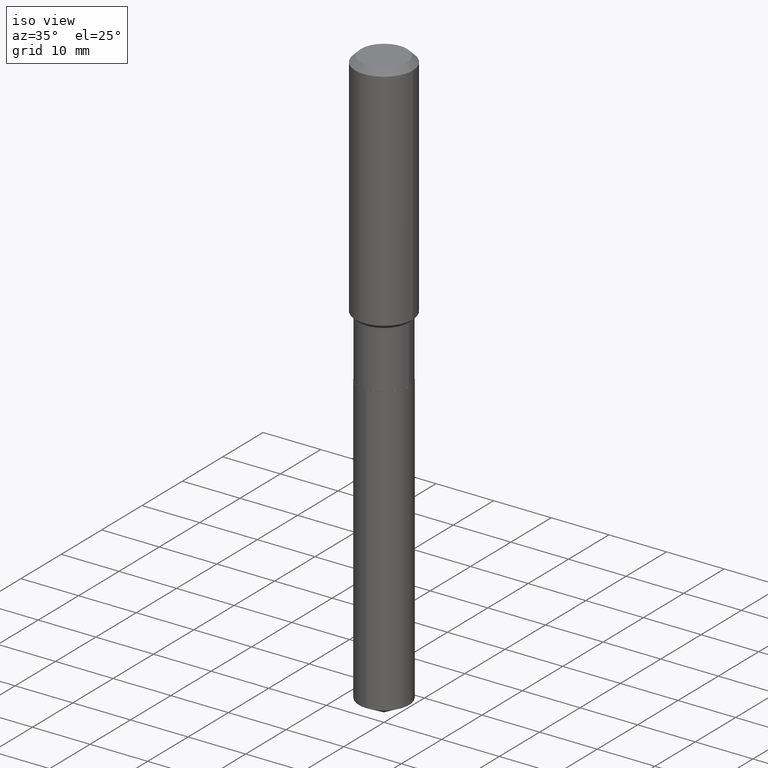
[diagram: clean part render]
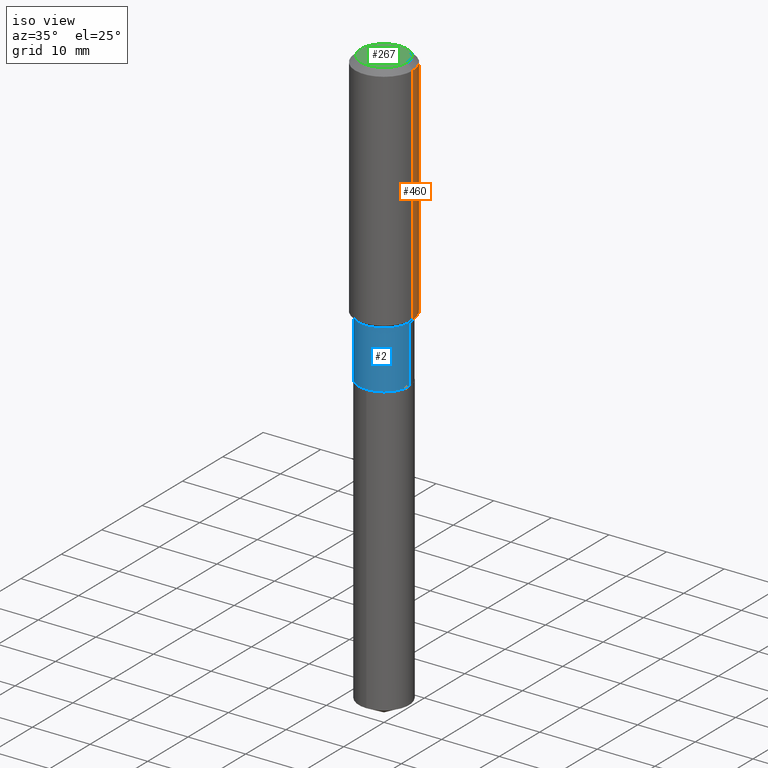
[diagram: same view with three faces highlighted in distinct colors, each labeled with its STEP entity id]
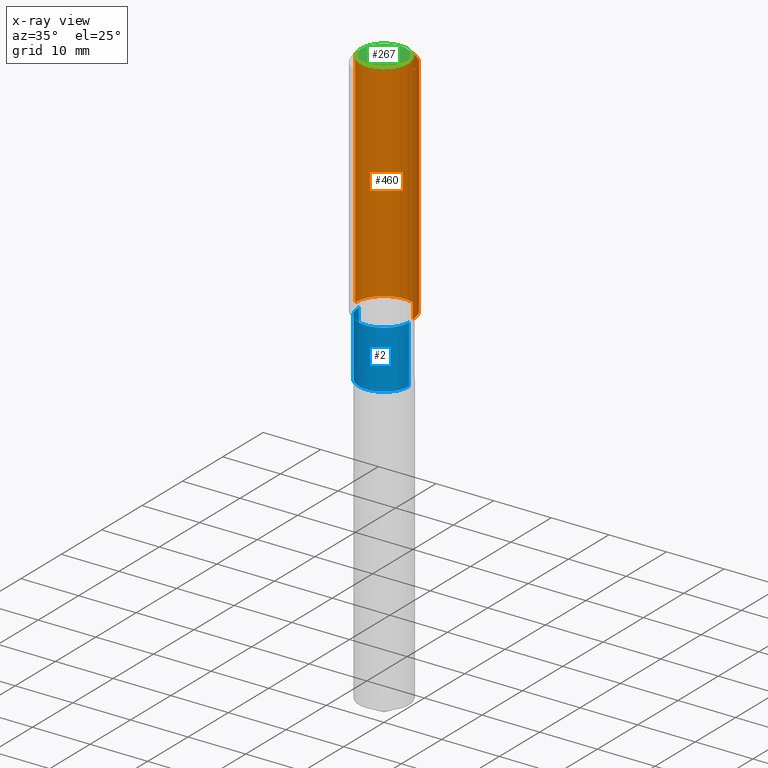
[diagram: x-ray of the same camera — body ghosted, the three highlighted faces saturated]
A machine part, iso view with three faces highlighted in distinct colors.
The next image is the same camera in x-ray (body ghosted, the three faces saturated) — at least one of them is partly hidden behind the body in this view.
Their STEP definitions:

[orange] entity #460 — the highlighted cylindrical surface (edge-blend (fillet) strip) has radius 5 mm, axis along (-0, 0, 1).
#6 = DIRECTION ( 'NONE',  ( -2.445468806185136597E-29, 3.491481338843145583E-15, 1.000000000000000000 ) ) ;
#19 = EDGE_LOOP ( 'NONE', ( #109, #292, #434, #126 ) ) ;
#22 = CARTESIAN_POINT ( 'NONE',  ( 0.1968500000000000250, -1.512055823412797189E-15, -0.03937000000000027283 ) ) ;
#24 = EDGE_CURVE ( 'NONE', #130, #325, #313, .T. ) ;
#58 = CYLINDRICAL_SURFACE ( 'NONE', #383, 0.1968500000000001082 ) ;
#63 = CARTESIAN_POINT ( 'NONE',  ( 0.000000000000000000, 0.000000000000000000, 0.000000000000000000 ) ) ;
#64 = EDGE_CURVE ( 'NONE', #219, #325, #89, .T. ) ;
#69 = DIRECTION ( 'NONE',  ( 1.000000000000000000, -6.982962677686266711E-15, 4.876176775795935793E-29 ) ) ;
#89 = LINE ( 'NONE', #305, #431 ) ;
#99 = VECTOR ( 'NONE', #331, 39.37007874015748143 ) ;
#103 = VERTEX_POINT ( 'NONE', #469 ) ;
#109 = ORIENTED_EDGE ( 'NONE', *, *, #421, .T. ) ;
#111 = CARTESIAN_POINT ( 'NONE',  ( -0.1968500000000000250, -1.422099313121007378E-15, -0.03937000000000027283 ) ) ;
#116 = DIRECTION ( 'NONE',  ( -2.445468806185136597E-29, 3.491481338843145583E-15, 1.000000000000000000 ) ) ;
#121 = CARTESIAN_POINT ( 'NONE',  ( 0.1968500000000001082, -1.374596203102542397E-15, 9.598753983154305062E-30 ) ) ;
#126 = ORIENTED_EDGE ( 'NONE', *, *, #311, .F. ) ;
#130 = VERTEX_POINT ( 'NONE', #22 ) ;
#136 = DIRECTION ( 'NONE',  ( -2.445468806185136597E-29, 3.491481338843145583E-15, 1.000000000000000000 ) ) ;
#139 = AXIS2_PLACEMENT_3D ( 'NONE', #162, #6, #201 ) ;
#162 = CARTESIAN_POINT ( 'NONE',  ( 3.855159299510557695E-29, -5.504145756619275933E-15, -1.576449999999999685 ) ) ;
#164 = DIRECTION ( 'NONE',  ( -2.445468806185136877E-29, 3.491481338843145188E-15, 1.000000000000000000 ) ) ;
#201 = DIRECTION ( 'NONE',  ( 1.000000000000000000, -6.982962677686265922E-15, 0.000000000000000000 ) ) ;
#216 = CARTESIAN_POINT ( 'NONE',  ( -0.1968500000000002192, -4.105442381275518145E-15, -1.576449999999999685 ) ) ;
#219 = VERTEX_POINT ( 'NONE', #216 ) ;
#237 = CIRCLE ( 'NONE', #139, 0.1968500000000002192 ) ;
#269 = FACE_OUTER_BOUND ( 'NONE', #19, .T. ) ;
#292 = ORIENTED_EDGE ( 'NONE', *, *, #64, .T. ) ;
#305 = CARTESIAN_POINT ( 'NONE',  ( -0.1968500000000001082, 1.398703375343757985E-15, -9.682923725166787881E-30 ) ) ;
#311 = EDGE_CURVE ( 'NONE', #103, #130, #411, .T. ) ;
#313 = CIRCLE ( 'NONE', #344, 0.1968500000000000250 ) ;
#325 = VERTEX_POINT ( 'NONE', #111 ) ;
#331 = DIRECTION ( 'NONE',  ( -2.445468806185136877E-29, 3.491481338843145188E-15, 1.000000000000000000 ) ) ;
#344 = AXIS2_PLACEMENT_3D ( 'NONE', #449, #116, #412 ) ;
#383 = AXIS2_PLACEMENT_3D ( 'NONE', #63, #136, #69 ) ;
#411 = LINE ( 'NONE', #121, #99 ) ;
#412 = DIRECTION ( 'NONE',  ( 1.000000000000000000, -6.982962677686265922E-15, 0.000000000000000000 ) ) ;
#421 = EDGE_CURVE ( 'NONE', #103, #219, #237, .T. ) ;
#431 = VECTOR ( 'NONE', #164, 39.37007874015748143 ) ;
#434 = ORIENTED_EDGE ( 'NONE', *, *, #24, .F. ) ;
#449 = CARTESIAN_POINT ( 'NONE',  ( 9.627810689950950651E-31, -1.374596203102555808E-16, -0.03937000000000027283 ) ) ;
#460 = ADVANCED_FACE ( 'NONE', ( #269 ), #58, .T. ) ;
#469 = CARTESIAN_POINT ( 'NONE',  ( 0.1968500000000002192, -6.878741959721819908E-15, -1.576449999999999685 ) ) ;

[blue] entity #2 — the highlighted cylindrical surface (edge-blend (fillet) strip) has radius 4.3663 mm, axis along (-0, 0, 1).
#2 = ADVANCED_FACE ( 'NONE', ( #182 ), #406, .T. ) ;
#4 = DIRECTION ( 'NONE',  ( 1.000000000000000000, -6.982962677686268288E-15, 0.000000000000000000 ) ) ;
#28 = CIRCLE ( 'NONE', #240, 0.1718999999999999695 ) ;
#35 = DIRECTION ( 'NONE',  ( 1.000000000000000000, -6.982962677686266711E-15, 4.876176775795936353E-29 ) ) ;
#82 = AXIS2_PLACEMENT_3D ( 'NONE', #222, #489, #35 ) ;
#85 = CARTESIAN_POINT ( 'NONE',  ( 0.1718999999999999695, -8.170415481026838913E-15, -1.996299999999999741 ) ) ;
#91 = VECTOR ( 'NONE', #141, 39.37007874015748143 ) ;
#95 = DIRECTION ( 'NONE',  ( 1.000000000000000000, -6.982962677686269077E-15, 0.000000000000000000 ) ) ;
#114 = DIRECTION ( 'NONE',  ( -2.445468806185136597E-29, 3.491481338843145583E-15, 1.000000000000000000 ) ) ;
#115 = EDGE_CURVE ( 'NONE', #328, #437, #395, .T. ) ;
#129 = DIRECTION ( 'NONE',  ( -2.445468806185136597E-29, 3.491481338843145583E-15, 1.000000000000000000 ) ) ;
#140 = VERTEX_POINT ( 'NONE', #427 ) ;
#141 = DIRECTION ( 'NONE',  ( -2.445468806185136877E-29, 3.491481338843145188E-15, 1.000000000000000000 ) ) ;
#142 = ORIENTED_EDGE ( 'NONE', *, *, #374, .T. ) ;
#155 = ORIENTED_EDGE ( 'NONE', *, *, #256, .F. ) ;
#182 = FACE_OUTER_BOUND ( 'NONE', #466, .T. ) ;
#222 = CARTESIAN_POINT ( 'NONE',  ( 0.000000000000000000, 0.000000000000000000, 0.000000000000000000 ) ) ;
#239 = VECTOR ( 'NONE', #416, 39.37007874015748143 ) ;
#240 = AXIS2_PLACEMENT_3D ( 'NONE', #334, #114, #4 ) ;
#251 = CARTESIAN_POINT ( 'NONE',  ( -0.1718999999999999417, 1.221422962771611806E-15, -8.455649420148180377E-30 ) ) ;
#252 = ORIENTED_EDGE ( 'NONE', *, *, #115, .F. ) ;
#256 = EDGE_CURVE ( 'NONE', #437, #140, #440, .T. ) ;
#259 = ORIENTED_EDGE ( 'NONE', *, *, #346, .T. ) ;
#268 = CARTESIAN_POINT ( 'NONE',  ( 0.1718999999999999417, -1.200371284294268847E-15, 8.382147877593211677E-30 ) ) ;
#328 = VERTEX_POINT ( 'NONE', #379 ) ;
#334 = CARTESIAN_POINT ( 'NONE',  ( 4.881889377787387135E-29, -6.970044196732570461E-15, -1.996299999999999741 ) ) ;
#337 = VERTEX_POINT ( 'NONE', #85 ) ;
#346 = EDGE_CURVE ( 'NONE', #337, #140, #381, .T. ) ;
#374 = EDGE_CURVE ( 'NONE', #328, #337, #28, .T. ) ;
#379 = CARTESIAN_POINT ( 'NONE',  ( -0.1718999999999999695, -5.059228243606378892E-15, -1.996299999999999741 ) ) ;
#381 = LINE ( 'NONE', #268, #239 ) ;
#395 = LINE ( 'NONE', #251, #91 ) ;
#406 = CYLINDRICAL_SURFACE ( 'NONE', #82, 0.1718999999999999417 ) ;
#416 = DIRECTION ( 'NONE',  ( -2.445468806185136877E-29, 3.491481338843145188E-15, 1.000000000000000000 ) ) ;
#419 = AXIS2_PLACEMENT_3D ( 'NONE', #430, #129, #95 ) ;
#427 = CARTESIAN_POINT ( 'NONE',  ( 0.1718999999999999417, -6.791629500317682541E-15, -1.601399999999999935 ) ) ;
#430 = CARTESIAN_POINT ( 'NONE',  ( 3.916173746224877726E-29, -5.591258216023413300E-15, -1.601399999999999935 ) ) ;
#437 = VERTEX_POINT ( 'NONE', #463 ) ;
#440 = CIRCLE ( 'NONE', #419, 0.1718999999999999417 ) ;
#463 = CARTESIAN_POINT ( 'NONE',  ( -0.1718999999999999417, -5.059228243606380469E-15, -1.601399999999999935 ) ) ;
#466 = EDGE_LOOP ( 'NONE', ( #252, #142, #259, #155 ) ) ;
#489 = DIRECTION ( 'NONE',  ( -2.445468806185136597E-29, 3.491481338843145583E-15, 1.000000000000000000 ) ) ;

[green] entity #267 — the highlighted planar face has unit normal (0, -0, -1).
#20 = DIRECTION ( 'NONE',  ( 2.438088387897960049E-29, -3.491481338843145188E-15, -1.000000000000000000 ) ) ;
#23 = ORIENTED_EDGE ( 'NONE', *, *, #234, .T. ) ;
#40 = DIRECTION ( 'NONE',  ( -2.445468806185136597E-29, 3.491481338843145583E-15, 1.000000000000000000 ) ) ;
#60 = PLANE ( 'NONE',  #483 ) ;
#127 = CIRCLE ( 'NONE', #196, 0.1574800000000000089 ) ;
#133 = DIRECTION ( 'NONE',  ( -2.445468806185136597E-29, 3.491481338843145583E-15, 1.000000000000000000 ) ) ;
#144 = DIRECTION ( 'NONE',  ( 1.000000000000000000, -6.982962677686265922E-15, 4.876223630392693006E-29 ) ) ;
#195 = DIRECTION ( 'NONE',  ( 1.000000000000000000, -6.982962677686265922E-15, 4.876223630392693006E-29 ) ) ;
#196 = AXIS2_PLACEMENT_3D ( 'NONE', #316, #133, #144 ) ;
#208 = CARTESIAN_POINT ( 'NONE',  ( -4.713871149261283817E-47, 6.730158695841841775E-33, 1.927594061857935365E-18 ) ) ;
#217 = EDGE_LOOP ( 'NONE', ( #355, #23 ) ) ;
#234 = EDGE_CURVE ( 'NONE', #298, #428, #127, .T. ) ;
#244 = FACE_OUTER_BOUND ( 'NONE', #217, .T. ) ;
#264 = CARTESIAN_POINT ( 'NONE',  ( 0.1574800000000000089, -1.284169937930321189E-15, 3.855188123724205385E-18 ) ) ;
#267 = ADVANCED_FACE ( 'NONE', ( #244 ), #60, .F. ) ;
#298 = VERTEX_POINT ( 'NONE', #264 ) ;
#316 = CARTESIAN_POINT ( 'NONE',  ( -9.427742298522567634E-47, 1.346031739168368355E-32, 3.855188123715870730E-18 ) ) ;
#347 = CARTESIAN_POINT ( 'NONE',  ( -0.1574800000000000089, 1.168406772637159618E-15, 3.855188123707939751E-18 ) ) ;
#355 = ORIENTED_EDGE ( 'NONE', *, *, #400, .T. ) ;
#375 = CARTESIAN_POINT ( 'NONE',  ( -9.427742298522567634E-47, 1.346031739168368355E-32, 3.855188123715870730E-18 ) ) ;
#400 = EDGE_CURVE ( 'NONE', #428, #298, #459, .T. ) ;
#428 = VERTEX_POINT ( 'NONE', #347 ) ;
#459 = CIRCLE ( 'NONE', #474, 0.1574800000000000089 ) ;
#474 = AXIS2_PLACEMENT_3D ( 'NONE', #375, #40, #195 ) ;
#483 = AXIS2_PLACEMENT_3D ( 'NONE', #208, #20, #485 ) ;
#485 = DIRECTION ( 'NONE',  ( -1.000000000000000000, 6.982962677686265922E-15, -4.876176775795935793E-29 ) ) ;